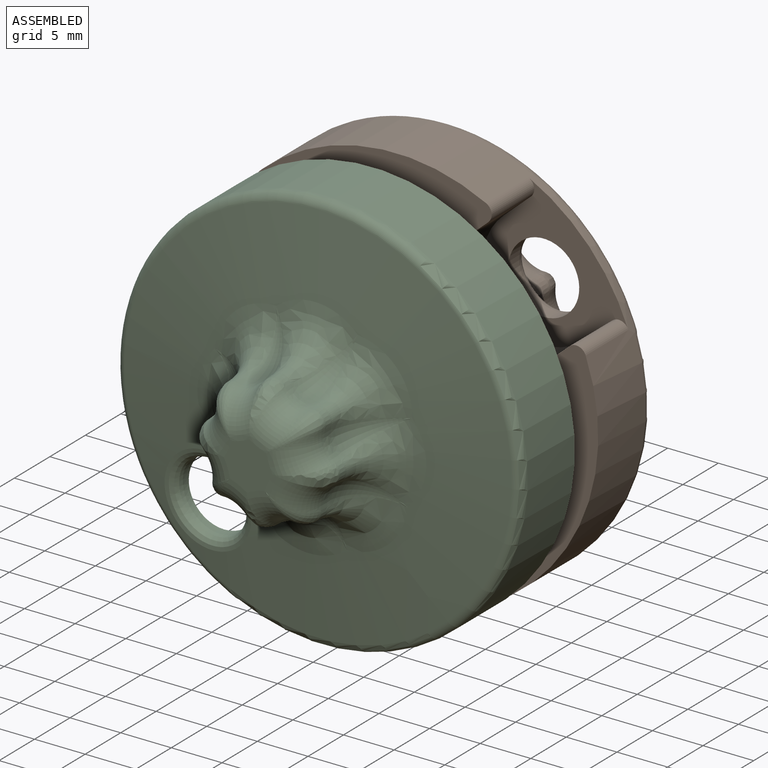
[diagram: assembled view]
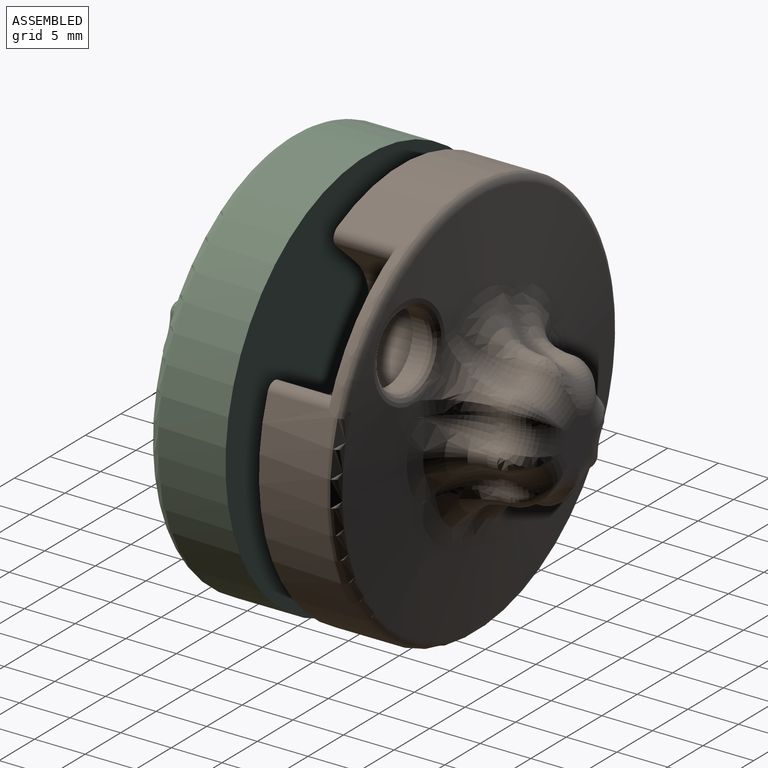
[diagram: assembled view, second angle]
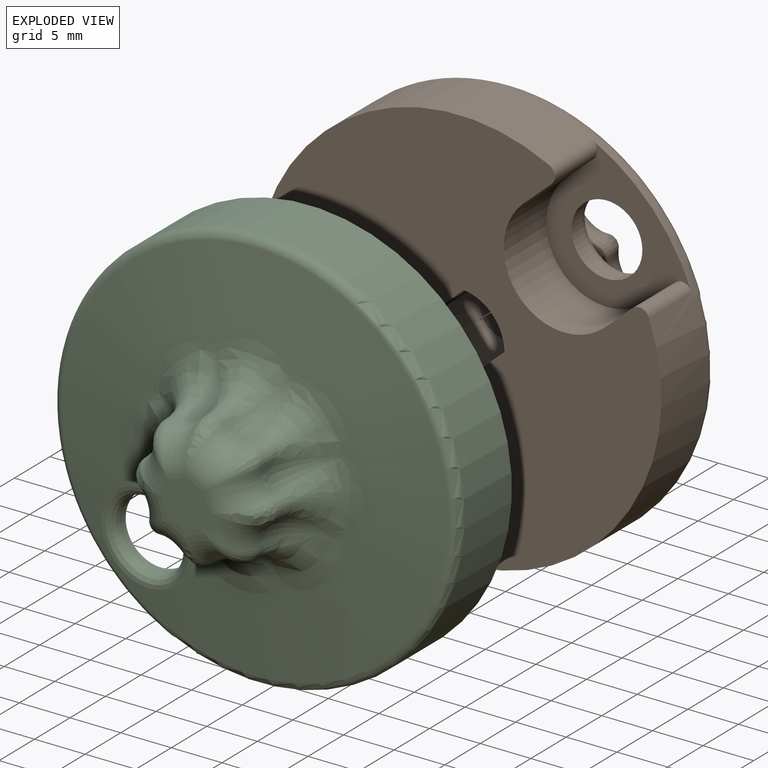
[diagram: exploded view]
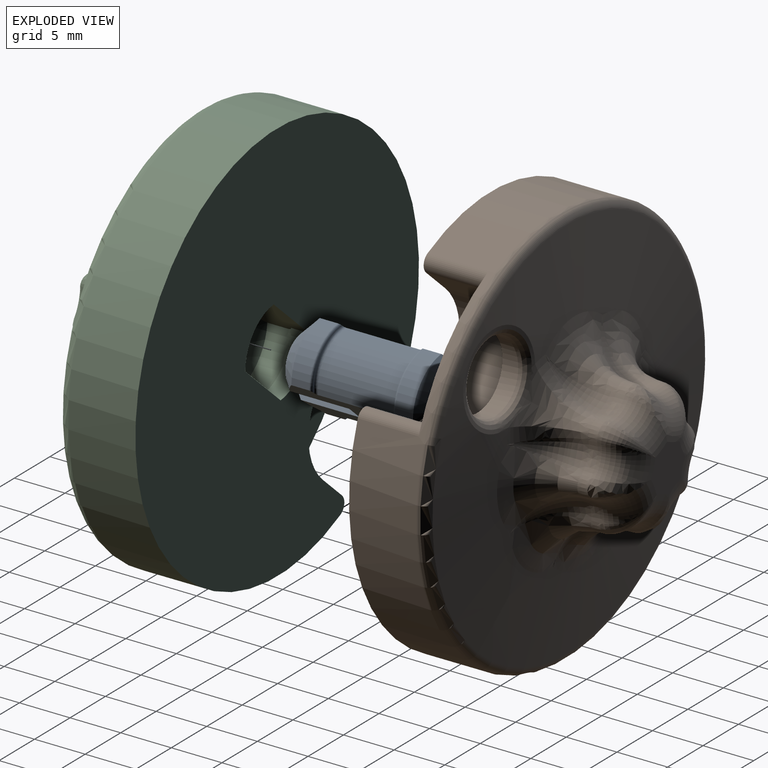
[diagram: exploded view, second angle]
ASSEMBLY  parts=3 mates=2
PART A: 38 faces, bbox 9.8x16.1x8.6 mm
  f0: torus R=4.25mm, axis (0,-1,0), area 2.6mm2, adj f1,f5,f19,f20
  f1: torus R=4.25mm, axis (0,-1,0), area 2.6mm2, adj f0,f2,f19,f20
  f2: cylinder r=4.5mm len=6mm, axis (0,-1,0), area 11.5mm2, adj f1,f3,f19,f20
  f3: cone r=2.5mm half-angle=45deg, axis (0,1,0), area 19.6mm2, adj f2,f11,f14,f18,f19,f20
  f4: plane 6x3mm, normal (0,-1,0), area 13.5mm2, adj f11,f12,f13,f15,f17,f18,f19,f20
  f5: cylinder r=4mm len=7.5mm, axis (0,-1,0), area 50.9mm2, adj f0,f19,f20,f21
  f6: cylinder r=4mm len=7.5mm, axis (0,-1,0), area 50.9mm2, adj f7,f19,f20,f26
  f7: torus R=4.25mm, axis (0,-1,0), area 2.6mm2, adj f6,f8,f19,f20
  f8: torus R=4.25mm, axis (0,-1,0), area 2.6mm2, adj f7,f9,f19,f20
  f9: cylinder r=4.5mm len=6mm, axis (0,-1,0), area 11.5mm2, adj f8,f10,f19,f20
  f10: cone r=2.5mm half-angle=45deg, axis (0,1,0), area 19.6mm2, adj f9,f12,f16,f17,f19,f20
  f11: plane 6.53x1.91mm, normal (-1,0,0), area 12mm2, adj f3,f4,f13,f14,f20
  f12: plane 6.53x1.91mm, normal (1,0,0), area 12mm2, adj f4,f10,f15,f16,f20
  f13: cylinder r=1.5mm len=6.5mm, axis (0,-1,0), area 16.4mm2, adj f4,f11,f14,f18
  f14: plane 4.58x1.5mm, normal (0,-1,0), area 4.2mm2, adj f3,f11,f13,f18
  f15: cylinder r=1.5mm len=6.5mm, axis (0,-1,0), area 16.4mm2, adj f4,f12,f16,f17
  f16: plane 4.58x1.5mm, normal (0,-1,0), area 4.2mm2, adj f10,f12,f15,f17
  f17: plane 6.53x1.91mm, normal (1,0,0), area 12mm2, adj f4,f10,f15,f16,f19
  f18: plane 6.53x1.91mm, normal (-1,0,0), area 12mm2, adj f3,f4,f13,f14,f19
  f19: plane 14.77x6.8mm, normal (0,0,1), area 58.3mm2, adj f0,f1,f2,f3,f4,f5,f6,f7
  f20: plane 14.77x6.8mm, normal (0,0,-1), area 58.3mm2, adj f0,f1,f2,f3,f4,f5,f6,f7
  f21: torus R=4.25mm, axis (0,1,0), area 2.6mm2, adj f5,f19,f20,f22
  f22: torus R=4.25mm, axis (0,1,0), area 2.6mm2, adj f19,f20,f21,f23
  f23: cylinder r=4.5mm len=6mm, axis (0,1,0), area 11.5mm2, adj f19,f20,f22,f24
  f24: cone r=2.5mm half-angle=45deg, axis (0,-1,0), area 19.6mm2, adj f19,f20,f23,f30,f33,f37
  f25: plane 6x3mm, normal (0,1,0), area 13.5mm2, adj f19,f20,f30,f31,f32,f34,f36,f37
  f26: torus R=4.25mm, axis (0,1,0), area 2.6mm2, adj f6,f19,f20,f27
  f27: torus R=4.25mm, axis (0,1,0), area 2.6mm2, adj f19,f20,f26,f28
  f28: cylinder r=4.5mm len=6mm, axis (0,1,0), area 11.5mm2, adj f19,f20,f27,f29
  f29: cone r=2.5mm half-angle=45deg, axis (0,-1,0), area 19.6mm2, adj f19,f20,f28,f31,f35,f36
  f30: plane 6.53x1.91mm, normal (-1,0,0), area 12mm2, adj f20,f24,f25,f32,f33
  f31: plane 6.53x1.91mm, normal (1,0,0), area 12mm2, adj f20,f25,f29,f34,f35
  f32: cylinder r=1.5mm len=6.5mm, axis (0,1,0), area 16.4mm2, adj f25,f30,f33,f37
  f33: plane 4.58x1.5mm, normal (0,1,0), area 4.2mm2, adj f24,f30,f32,f37
  f34: cylinder r=1.5mm len=6.5mm, axis (0,1,0), area 16.4mm2, adj f25,f31,f35,f36
  f35: plane 4.58x1.5mm, normal (0,1,0), area 4.2mm2, adj f29,f31,f34,f36
  f36: plane 6.53x1.91mm, normal (1,0,0), area 12mm2, adj f19,f25,f29,f34,f35
  f37: plane 6.53x1.91mm, normal (-1,0,0), area 12mm2, adj f19,f24,f25,f32,f33
PART B: 75 faces, bbox 43.5x17.7x43.5 mm
  f0: bspline ~4.72x4mm, area 8.3mm2, adj f1,f72,f73,f74
  f1: bspline ~4.72x4mm, area 8.2mm2, adj f0,f2,f72,f74
  f2: bspline ~5.1x4.97mm, area 7.1mm2, adj f1,f3,f51,f74
  f3: bspline ~4.76x4.69mm, area 8mm2, adj f2,f4,f50
  f4: bspline ~8.35x8.35mm, area 36.1mm2, adj f3,f5,f49,f51
  f5: cone r=1.55mm half-angle=3deg, axis (0,1,0), area 2mm2, adj f4,f6,f48,f50
  f6: bspline ~3.38x3.37mm, area 4.6mm2, adj f5,f7,f47
  f7: torus R=6.21mm, axis (0,-1,0), area 14mm2, adj f6,f8,f45,f46,f50
  f8: plane 4.83x4.83mm, normal (0,-1,0), area 15.8mm2, adj f7,f9,f40,f41,f42,f43,f44,f47
  f9: torus R=6.21mm, axis (0,-1,0), area 14mm2, adj f8,f10,f39,f45,f46
  f10: bspline ~3.38x3.37mm, area 4.6mm2, adj f9,f11,f44
  f11: cone r=1.55mm half-angle=3deg, axis (0,1,0), area 2mm2, adj f10,f12,f37,f39
  f12: cone r=2.36mm half-angle=3deg, axis (0,-1,0), area 2.5mm2, adj f11,f13,f35,f44
  f13: bspline ~4.76x4.68mm, area 11.8mm2, adj f12,f14,f37
  f14: bspline ~11.15x5.42mm, area 36.1mm2, adj f13,f15,f35,f51
  f15: bspline ~4.76x4.68mm, area 11mm2, adj f14,f16,f34
  f16: bspline ~8.35x8.35mm, area 36.1mm2, adj f15,f17,f32,f51
  f17: bspline ~4.76x4.68mm, area 11.6mm2, adj f16,f18,f31
  f18: bspline ~11.15x5.42mm, area 36.1mm2, adj f17,f19,f29,f51
  f19: bspline ~4.76x4.69mm, area 8mm2, adj f18,f20,f28
  f20: cone r=2.36mm half-angle=3deg, axis (0,-1,0), area 2.5mm2, adj f19,f21,f29,f41
  f21: cone r=1.55mm half-angle=3deg, axis (0,1,0), area 2mm2, adj f20,f22,f23,f28
  f22: bspline ~3.38x3.37mm, area 4.6mm2, adj f21,f40,f41
  f23: cone r=2.36mm half-angle=3deg, axis (0,-1,0), area 2.5mm2, adj f21,f24,f26,f40
  f24: bspline ~4.76x4.69mm, area 8.2mm2, adj f23,f25,f28
  f25: bspline ~11.15x5.42mm, area 36.1mm2, adj f24,f26,f49,f51
  f26: cone r=1.55mm half-angle=3deg, axis (0,1,0), area 2mm2, adj f23,f25,f27,f48
  f27: bspline ~4.27x3.32mm, area 4.6mm2, adj f26,f40,f47
  f28: bspline ~8.35x8.35mm, area 36.1mm2, adj f19,f21,f24,f51
  f29: cone r=1.55mm half-angle=3deg, axis (0,1,0), area 2mm2, adj f18,f20,f30,f31
  f30: bspline ~4.27x3.32mm, area 4.1mm2, adj f29,f41,f42
  f31: cone r=2.36mm half-angle=3deg, axis (0,-1,0), area 2.5mm2, adj f17,f29,f32,f42
  f32: cone r=1.55mm half-angle=3deg, axis (0,1,0), area 2mm2, adj f16,f31,f33,f34
  f33: bspline ~3.38x3.37mm, area 4.6mm2, adj f32,f42,f43
  f34: cone r=2.36mm half-angle=3deg, axis (0,-1,0), area 2.5mm2, adj f15,f32,f35,f43
  f35: cone r=1.55mm half-angle=3deg, axis (0,1,0), area 2mm2, adj f12,f14,f34,f36
  f36: bspline ~4.27x3.32mm, area 4.6mm2, adj f35,f43,f44
  f37: bspline ~8.35x8.35mm, area 36.1mm2, adj f11,f13,f38,f51
  f38: bspline ~4.76x4.68mm, area 10.9mm2, adj f37,f39,f73
  f39: cone r=2.36mm half-angle=3deg, axis (0,-1,0), area 2.5mm2, adj f9,f11,f38,f74
  f40: torus R=6.21mm, axis (0,-1,0), area 14mm2, adj f8,f22,f23,f27
  f41: torus R=6.21mm, axis (0,-1,0), area 14mm2, adj f8,f20,f22,f30
  f42: torus R=6.21mm, axis (0,-1,0), area 14mm2, adj f8,f30,f31,f33
  f43: torus R=6.21mm, axis (0,-1,0), area 14mm2, adj f8,f33,f34,f36
  f44: torus R=6.21mm, axis (0,-1,0), area 14mm2, adj f8,f10,f12,f36
  f45: bspline ~4.27x3.32mm, area 3.9mm2, adj f7,f9,f74
  f46: bspline ~1.77x0.4mm, area 0mm2, adj f7,f9
  f47: torus R=6.21mm, axis (0,-1,0), area 14mm2, adj f6,f8,f27,f48
  f48: cone r=2.36mm half-angle=3deg, axis (0,-1,0), area 2.5mm2, adj f5,f26,f47,f49
  f49: bspline ~4.76x4.69mm, area 8mm2, adj f4,f25,f48
  f50: cone r=2.36mm half-angle=3deg, axis (0,-1,0), area 2.5mm2, adj f3,f5,f7,f74
  f51: sphere r=134.08mm, area 714.9mm2, adj f2,f4,f14,f16,f18,f25,f28,f37
  f52: torus R=19mm, axis (0,1,0), area 176.6mm2, adj f51,f53
  f53: cylinder r=20mm len=40mm, axis (0,-1,0), area 743.4mm2, adj f52,f54,f58,f69,f70
  f54: cylinder r=1mm len=6mm, axis (0,-1,0), area 11.7mm2, adj f53,f55,f58,f70
  f55: plane 6x3.66mm, normal (-1,0,0), area 22mm2, adj f54,f56,f58,f70
  f56: cylinder r=6mm len=12mm, axis (0,1,0), area 113.1mm2, adj f55,f57,f58,f70
  f57: plane 6x3.66mm, normal (1,0,0), area 22mm2, adj f56,f58,f69,f70
  f58: plane 40x38.66mm, normal (0,1,0), area 1081.1mm2, adj f53,f54,f55,f56,f57,f59,f66,f67
  f59: plane 8.2x6.65mm, normal (1,0,0), area 43.2mm2, adj f58,f60,f61,f63,f64,f65,f66,f68
  f60: cylinder r=5mm len=6mm, axis (0,-1,0), area 12.6mm2, adj f59,f61,f65,f67
  f61: cone r=2.71mm half-angle=45deg, axis (0,1,0), area 46.9mm2, adj f59,f60,f62,f63,f67
  f62: plane 5.41x5.41mm, normal (0,1,0), area 23mm2, adj f61
  f63: cylinder r=5mm len=6mm, axis (0,-1,0), area 12.6mm2, adj f59,f61,f64,f67
  f64: torus R=4.25mm, axis (0,-1,0), area 6.1mm2, adj f59,f63,f67,f68
  f65: torus R=4.25mm, axis (0,-1,0), area 6.1mm2, adj f59,f60,f66,f67
  f66: cylinder r=4.5mm len=6mm, axis (0,-1,0), area 11.8mm2, adj f58,f59,f65,f67
  f67: plane 8.2x6.65mm, normal (-1,0,0), area 43.2mm2, adj f58,f60,f61,f63,f64,f65,f66,f68
  f68: cylinder r=4.5mm len=6mm, axis (0,-1,0), area 11.8mm2, adj f58,f59,f64,f67
  f69: cylinder r=1mm len=6mm, axis (0,-1,0), area 11.7mm2, adj f53,f57,f58,f70
  f70: plane 14.74x12mm, normal (0,1,0), area 87.4mm2, adj f53,f54,f55,f56,f57,f69,f71
  f71: cylinder r=3.5mm len=7mm, axis (0,1,0), area 26mm2, adj f70,f72
  f72: bspline ~9.08x9.08mm, area 38.3mm2, adj f0,f1,f51,f71
  f73: bspline ~4.82x4.7mm, area 7.1mm2, adj f0,f38,f51,f74
  f74: cone r=1.55mm half-angle=3deg, axis (0,1,0), area 2.3mm2, adj f0,f1,f2,f39,f45,f50,f73
PART C: same geometry as B
PLACE A rot(axis=(0,-1,0),41.9deg) t=(113.55,0,43.46)mm
PLACE B rot(axis=(0.41,0,0.91),180deg) t=(-126.63,-0.1,56.53)mm
PLACE C rot(axis=(0,-1,0),131.9deg) t=(126.63,0.1,283.63)mm
MATE fastened C.f52 <-> A.f0  axis (0,1,0) through (0,-8.4,170.08)mm
MATE fastened B.f52 <-> A.f0  axis (0,-1,0) through (0,8.4,170.08)mm
